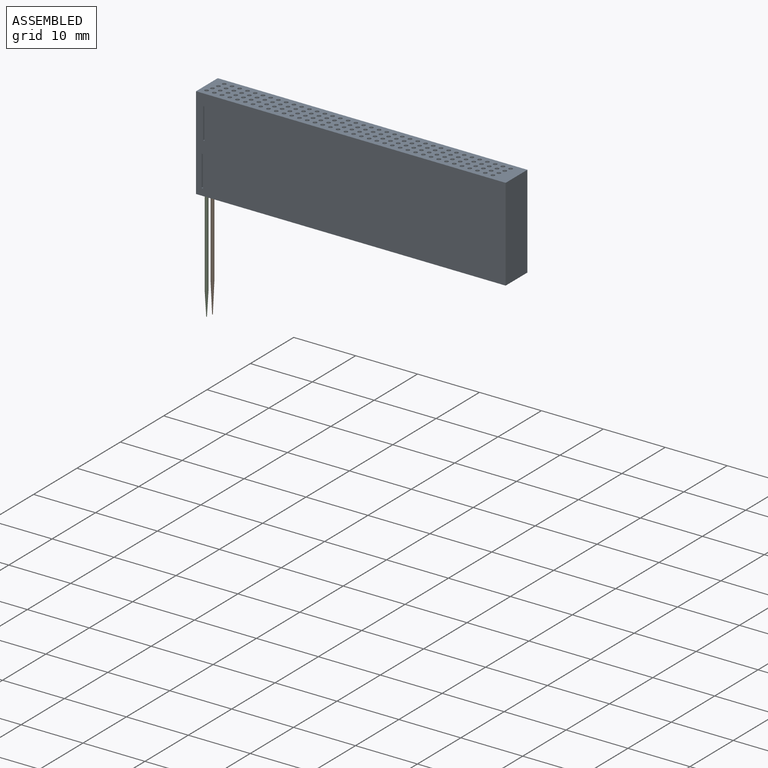
[diagram: assembled view]
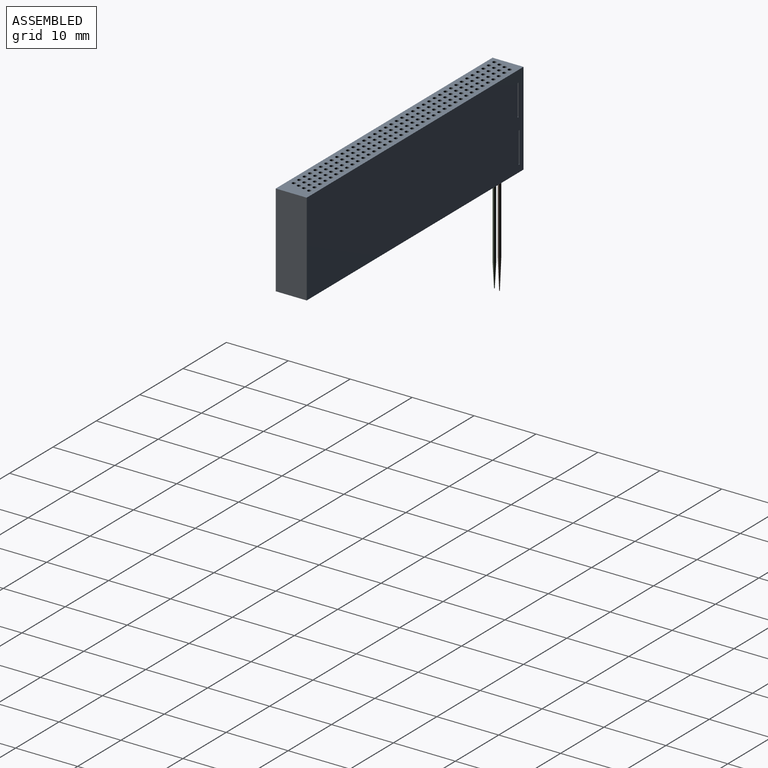
[diagram: assembled view, second angle]
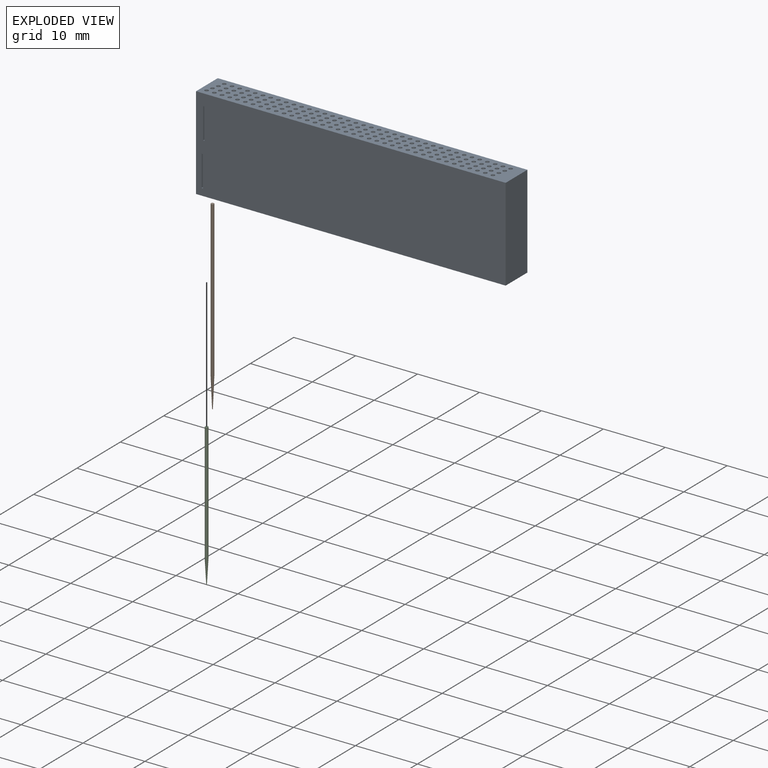
[diagram: exploded view]
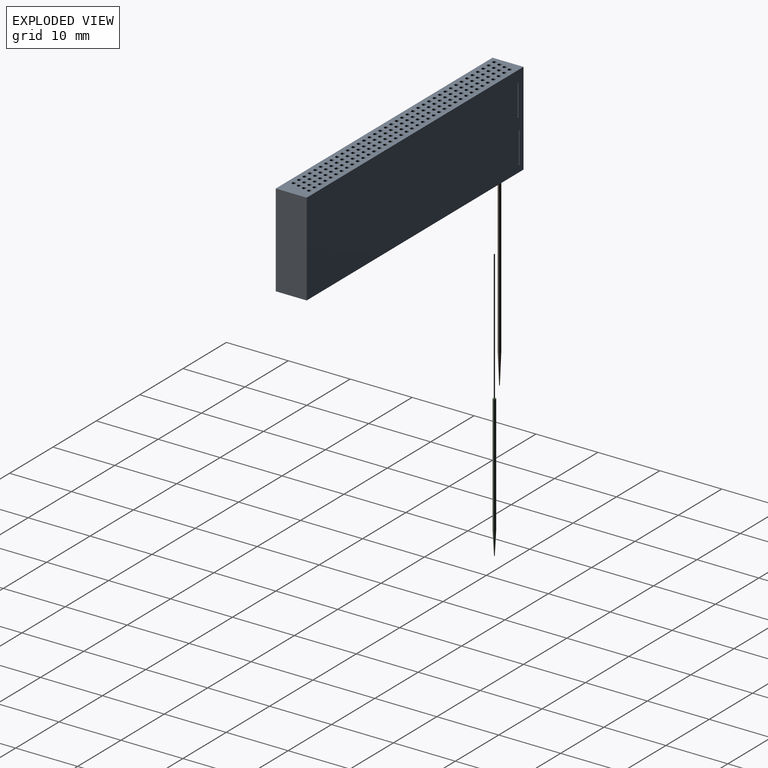
[diagram: exploded view, second angle]
ASSEMBLY  parts=3 mates=2
PART A: 177 faces, bbox 50x5x15 mm
  f0: plane 50x15mm, normal (0,-1,0), area 748mm2, adj f5,f6,f156,f157,f169,f170,f171,f172
  f1: cylinder r=0.3mm len=15mm, axis (0,0,-1), area 25.1mm2, adj f156,f157,f158,f159,f161,f162
  f2: cylinder r=0.3mm len=15mm, axis (0,0,-1), area 23.1mm2, adj f156,f157,f159,f160,f161,f162,f163,f164
  f3: cylinder r=0.3mm len=15mm, axis (0,0,-1), area 23.1mm2, adj f156,f157,f164,f165,f166,f167,f168,f169
  f4: plane 50x15mm, normal (0,1,0), area 748mm2, adj f5,f6,f156,f157,f158,f159,f160,f161
  f5: plane 15x5mm, normal (-1,0,0), area 75mm2, adj f0,f4,f156,f157
  f6: plane 15x5mm, normal (1,0,0), area 75mm2, adj f0,f4,f156,f157
  f7: cylinder r=0.3mm len=15mm, axis (0,0,-1), area 28.3mm2, adj f156,f157
  f8: cylinder r=0.3mm len=15mm, axis (0,0,-1), area 28.3mm2, adj f156,f157
  f9: cylinder r=0.3mm len=15mm, axis (0,0,-1), area 28.3mm2, adj f156,f157
  f10: cylinder r=0.3mm len=15mm, axis (0,0,-1), area 28.3mm2, adj f156,f157
  f11: cylinder r=0.3mm len=15mm, axis (0,0,-1), area 28.3mm2, adj f156,f157
  f12: cylinder r=0.3mm len=15mm, axis (0,0,-1), area 28.3mm2, adj f156,f157
  f13: cylinder r=0.3mm len=15mm, axis (0,0,-1), area 28.3mm2, adj f156,f157
  f14: cylinder r=0.3mm len=15mm, axis (0,0,-1), area 28.3mm2, adj f156,f157
  f15: cylinder r=0.3mm len=15mm, axis (0,0,-1), area 28.3mm2, adj f156,f157
  f16: cylinder r=0.3mm len=15mm, axis (0,0,-1), area 28.3mm2, adj f156,f157
  f17: cylinder r=0.3mm len=15mm, axis (0,0,-1), area 28.3mm2, adj f156,f157
  f18: cylinder r=0.3mm len=15mm, axis (0,0,-1), area 28.3mm2, adj f156,f157
  f19: cylinder r=0.3mm len=15mm, axis (0,0,-1), area 28.3mm2, adj f156,f157
  f20: cylinder r=0.3mm len=15mm, axis (0,0,-1), area 28.3mm2, adj f156,f157
  f21: cylinder r=0.3mm len=15mm, axis (0,0,-1), area 28.3mm2, adj f156,f157
  f22: cylinder r=0.3mm len=15mm, axis (0,0,-1), area 28.3mm2, adj f156,f157
  f23: cylinder r=0.3mm len=15mm, axis (0,0,-1), area 28.3mm2, adj f156,f157
  f24: cylinder r=0.3mm len=15mm, axis (0,0,-1), area 28.3mm2, adj f156,f157
  f25: cylinder r=0.3mm len=15mm, axis (0,0,-1), area 28.3mm2, adj f156,f157
  f26: cylinder r=0.3mm len=15mm, axis (0,0,-1), area 28.3mm2, adj f156,f157
  f27: cylinder r=0.3mm len=15mm, axis (0,0,-1), area 28.3mm2, adj f156,f157
  f28: cylinder r=0.3mm len=15mm, axis (0,0,-1), area 28.3mm2, adj f156,f157
  f29: cylinder r=0.3mm len=15mm, axis (0,0,-1), area 28.3mm2, adj f156,f157
  f30: cylinder r=0.3mm len=15mm, axis (0,0,-1), area 28.3mm2, adj f156,f157
  f31: cylinder r=0.3mm len=15mm, axis (0,0,-1), area 28.3mm2, adj f156,f157
  f32: cylinder r=0.3mm len=15mm, axis (0,0,-1), area 28.3mm2, adj f156,f157
  f33: cylinder r=0.3mm len=15mm, axis (0,0,-1), area 28.3mm2, adj f156,f157
  f34: cylinder r=0.3mm len=15mm, axis (0,0,-1), area 28.3mm2, adj f156,f157
  f35: cylinder r=0.3mm len=15mm, axis (0,0,-1), area 28.3mm2, adj f156,f157
  f36: cylinder r=0.3mm len=15mm, axis (0,0,-1), area 28.3mm2, adj f156,f157
  f37: cylinder r=0.3mm len=15mm, axis (0,0,-1), area 28.3mm2, adj f156,f157
  f38: cylinder r=0.3mm len=15mm, axis (0,0,-1), area 28.3mm2, adj f156,f157
  f39: cylinder r=0.3mm len=15mm, axis (0,0,-1), area 28.3mm2, adj f156,f157
  f40: cylinder r=0.3mm len=15mm, axis (0,0,-1), area 28.3mm2, adj f156,f157
  f41: cylinder r=0.3mm len=15mm, axis (0,0,-1), area 28.3mm2, adj f156,f157
  f42: cylinder r=0.3mm len=15mm, axis (0,0,-1), area 28.3mm2, adj f156,f157
  f43: cylinder r=0.3mm len=15mm, axis (0,0,-1), area 28.3mm2, adj f156,f157
  f44: cylinder r=0.3mm len=15mm, axis (0,0,-1), area 28.3mm2, adj f156,f157
  f45: cylinder r=0.3mm len=15mm, axis (0,0,-1), area 28.3mm2, adj f156,f157
  f46: cylinder r=0.3mm len=15mm, axis (0,0,-1), area 28.3mm2, adj f156,f157
  f47: cylinder r=0.3mm len=15mm, axis (0,0,-1), area 28.3mm2, adj f156,f157
  f48: cylinder r=0.3mm len=15mm, axis (0,0,-1), area 28.3mm2, adj f156,f157
  f49: cylinder r=0.3mm len=15mm, axis (0,0,-1), area 28.3mm2, adj f156,f157
  f50: cylinder r=0.3mm len=15mm, axis (0,0,-1), area 28.3mm2, adj f156,f157
  f51: cylinder r=0.3mm len=15mm, axis (0,0,-1), area 28.3mm2, adj f156,f157
  f52: cylinder r=0.3mm len=15mm, axis (0,0,-1), area 28.3mm2, adj f156,f157
  f53: cylinder r=0.3mm len=15mm, axis (0,0,-1), area 28.3mm2, adj f156,f157
  f54: cylinder r=0.3mm len=15mm, axis (0,0,-1), area 28.3mm2, adj f156,f157
  f55: cylinder r=0.3mm len=15mm, axis (0,0,-1), area 28.3mm2, adj f156,f157
  f56: cylinder r=0.3mm len=15mm, axis (0,0,-1), area 28.3mm2, adj f156,f157
  f57: cylinder r=0.3mm len=15mm, axis (0,0,-1), area 28.3mm2, adj f156,f157
  f58: cylinder r=0.3mm len=15mm, axis (0,0,-1), area 28.3mm2, adj f156,f157
  f59: cylinder r=0.3mm len=15mm, axis (0,0,-1), area 28.3mm2, adj f156,f157
  f60: cylinder r=0.3mm len=15mm, axis (0,0,-1), area 28.3mm2, adj f156,f157
  f61: cylinder r=0.3mm len=15mm, axis (0,0,-1), area 28.3mm2, adj f156,f157
  f62: cylinder r=0.3mm len=15mm, axis (0,0,-1), area 28.3mm2, adj f156,f157
  f63: cylinder r=0.3mm len=15mm, axis (0,0,-1), area 28.3mm2, adj f156,f157
  f64: cylinder r=0.3mm len=15mm, axis (0,0,-1), area 28.3mm2, adj f156,f157
  f65: cylinder r=0.3mm len=15mm, axis (0,0,-1), area 28.3mm2, adj f156,f157
  f66: cylinder r=0.3mm len=15mm, axis (0,0,-1), area 28.3mm2, adj f156,f157
  f67: cylinder r=0.3mm len=15mm, axis (0,0,-1), area 28.3mm2, adj f156,f157
  f68: cylinder r=0.3mm len=15mm, axis (0,0,-1), area 28.3mm2, adj f156,f157
  f69: cylinder r=0.3mm len=15mm, axis (0,0,-1), area 28.3mm2, adj f156,f157
  f70: cylinder r=0.3mm len=15mm, axis (0,0,-1), area 28.3mm2, adj f156,f157
  f71: cylinder r=0.3mm len=15mm, axis (0,0,-1), area 28.3mm2, adj f156,f157
  f72: cylinder r=0.3mm len=15mm, axis (0,0,-1), area 28.3mm2, adj f156,f157
  f73: cylinder r=0.3mm len=15mm, axis (0,0,-1), area 28.3mm2, adj f156,f157
  f74: cylinder r=0.3mm len=15mm, axis (0,0,-1), area 28.3mm2, adj f156,f157
  f75: cylinder r=0.3mm len=15mm, axis (0,0,-1), area 28.3mm2, adj f156,f157
  f76: cylinder r=0.3mm len=15mm, axis (0,0,-1), area 28.3mm2, adj f156,f157
  f77: cylinder r=0.3mm len=15mm, axis (0,0,-1), area 28.3mm2, adj f156,f157
  f78: cylinder r=0.3mm len=15mm, axis (0,0,-1), area 28.3mm2, adj f156,f157
  f79: cylinder r=0.3mm len=15mm, axis (0,0,-1), area 28.3mm2, adj f156,f157
  f80: cylinder r=0.3mm len=15mm, axis (0,0,-1), area 28.3mm2, adj f156,f157
  f81: cylinder r=0.3mm len=15mm, axis (0,0,-1), area 28.3mm2, adj f156,f157
  f82: cylinder r=0.3mm len=15mm, axis (0,0,-1), area 28.3mm2, adj f156,f157
  f83: cylinder r=0.3mm len=15mm, axis (0,0,-1), area 28.3mm2, adj f156,f157
  f84: cylinder r=0.3mm len=15mm, axis (0,0,-1), area 28.3mm2, adj f156,f157
  f85: cylinder r=0.3mm len=15mm, axis (0,0,-1), area 28.3mm2, adj f156,f157
  f86: cylinder r=0.3mm len=15mm, axis (0,0,-1), area 28.3mm2, adj f156,f157
  f87: cylinder r=0.3mm len=15mm, axis (0,0,-1), area 28.3mm2, adj f156,f157
  f88: cylinder r=0.3mm len=15mm, axis (0,0,-1), area 28.3mm2, adj f156,f157
  f89: cylinder r=0.3mm len=15mm, axis (0,0,-1), area 28.3mm2, adj f156,f157
  f90: cylinder r=0.3mm len=15mm, axis (0,0,-1), area 28.3mm2, adj f156,f157
  f91: cylinder r=0.3mm len=15mm, axis (0,0,-1), area 28.3mm2, adj f156,f157
  f92: cylinder r=0.3mm len=15mm, axis (0,0,-1), area 28.3mm2, adj f156,f157
  f93: cylinder r=0.3mm len=15mm, axis (0,0,-1), area 28.3mm2, adj f156,f157
  f94: cylinder r=0.3mm len=15mm, axis (0,0,-1), area 28.3mm2, adj f156,f157
  f95: cylinder r=0.3mm len=15mm, axis (0,0,-1), area 28.3mm2, adj f156,f157
  f96: cylinder r=0.3mm len=15mm, axis (0,0,-1), area 28.3mm2, adj f156,f157
  f97: cylinder r=0.3mm len=15mm, axis (0,0,-1), area 28.3mm2, adj f156,f157
  f98: cylinder r=0.3mm len=15mm, axis (0,0,-1), area 28.3mm2, adj f156,f157
  f99: cylinder r=0.3mm len=15mm, axis (0,0,-1), area 28.3mm2, adj f156,f157
  f100: cylinder r=0.3mm len=15mm, axis (0,0,-1), area 28.3mm2, adj f156,f157
  f101: cylinder r=0.3mm len=15mm, axis (0,0,-1), area 28.3mm2, adj f156,f157
  f102: cylinder r=0.3mm len=15mm, axis (0,0,-1), area 28.3mm2, adj f156,f157
  f103: cylinder r=0.3mm len=15mm, axis (0,0,-1), area 28.3mm2, adj f156,f157
  f104: cylinder r=0.3mm len=15mm, axis (0,0,-1), area 28.3mm2, adj f156,f157
  f105: cylinder r=0.3mm len=15mm, axis (0,0,-1), area 28.3mm2, adj f156,f157
  f106: cylinder r=0.3mm len=15mm, axis (0,0,-1), area 28.3mm2, adj f156,f157
  f107: cylinder r=0.3mm len=15mm, axis (0,0,-1), area 28.3mm2, adj f156,f157
  f108: cylinder r=0.3mm len=15mm, axis (0,0,-1), area 28.3mm2, adj f156,f157
  f109: cylinder r=0.3mm len=15mm, axis (0,0,-1), area 28.3mm2, adj f156,f157
  f110: cylinder r=0.3mm len=15mm, axis (0,0,-1), area 28.3mm2, adj f156,f157
  f111: cylinder r=0.3mm len=15mm, axis (0,0,-1), area 28.3mm2, adj f156,f157
  f112: cylinder r=0.3mm len=15mm, axis (0,0,-1), area 28.3mm2, adj f156,f157
  f113: cylinder r=0.3mm len=15mm, axis (0,0,-1), area 28.3mm2, adj f156,f157
  f114: cylinder r=0.3mm len=15mm, axis (0,0,-1), area 28.3mm2, adj f156,f157
  f115: cylinder r=0.3mm len=15mm, axis (0,0,-1), area 28.3mm2, adj f156,f157
  f116: cylinder r=0.3mm len=15mm, axis (0,0,-1), area 28.3mm2, adj f156,f157
  f117: cylinder r=0.3mm len=15mm, axis (0,0,-1), area 28.3mm2, adj f156,f157
  f118: cylinder r=0.3mm len=15mm, axis (0,0,-1), area 28.3mm2, adj f156,f157
  f119: cylinder r=0.3mm len=15mm, axis (0,0,-1), area 28.3mm2, adj f156,f157
  f120: cylinder r=0.3mm len=15mm, axis (0,0,-1), area 28.3mm2, adj f156,f157
  f121: cylinder r=0.3mm len=15mm, axis (0,0,-1), area 28.3mm2, adj f156,f157
  f122: cylinder r=0.3mm len=15mm, axis (0,0,-1), area 28.3mm2, adj f156,f157
  f123: cylinder r=0.3mm len=15mm, axis (0,0,-1), area 28.3mm2, adj f156,f157
  f124: cylinder r=0.3mm len=15mm, axis (0,0,-1), area 28.3mm2, adj f156,f157
  f125: cylinder r=0.3mm len=15mm, axis (0,0,-1), area 28.3mm2, adj f156,f157
  f126: cylinder r=0.3mm len=15mm, axis (0,0,-1), area 28.3mm2, adj f156,f157
  f127: cylinder r=0.3mm len=15mm, axis (0,0,-1), area 28.3mm2, adj f156,f157
  f128: cylinder r=0.3mm len=15mm, axis (0,0,-1), area 28.3mm2, adj f156,f157
  f129: cylinder r=0.3mm len=15mm, axis (0,0,-1), area 28.3mm2, adj f156,f157
  f130: cylinder r=0.3mm len=15mm, axis (0,0,-1), area 28.3mm2, adj f156,f157
  f131: cylinder r=0.3mm len=15mm, axis (0,0,-1), area 28.3mm2, adj f156,f157
  f132: cylinder r=0.3mm len=15mm, axis (0,0,-1), area 28.3mm2, adj f156,f157
  f133: cylinder r=0.3mm len=15mm, axis (0,0,-1), area 28.3mm2, adj f156,f157
  f134: cylinder r=0.3mm len=15mm, axis (0,0,-1), area 28.3mm2, adj f156,f157
  f135: cylinder r=0.3mm len=15mm, axis (0,0,-1), area 28.3mm2, adj f156,f157
  f136: cylinder r=0.3mm len=15mm, axis (0,0,-1), area 28.3mm2, adj f156,f157
  f137: cylinder r=0.3mm len=15mm, axis (0,0,-1), area 28.3mm2, adj f156,f157
  f138: cylinder r=0.3mm len=15mm, axis (0,0,-1), area 28.3mm2, adj f156,f157
  f139: cylinder r=0.3mm len=15mm, axis (0,0,-1), area 28.3mm2, adj f156,f157
  f140: cylinder r=0.3mm len=15mm, axis (0,0,-1), area 28.3mm2, adj f156,f157
  f141: cylinder r=0.3mm len=15mm, axis (0,0,-1), area 28.3mm2, adj f156,f157
  f142: cylinder r=0.3mm len=15mm, axis (0,0,-1), area 28.3mm2, adj f156,f157
  f143: cylinder r=0.3mm len=15mm, axis (0,0,-1), area 28.3mm2, adj f156,f157
  f144: cylinder r=0.3mm len=15mm, axis (0,0,-1), area 28.3mm2, adj f156,f157
  f145: cylinder r=0.3mm len=15mm, axis (0,0,-1), area 28.3mm2, adj f156,f157
  f146: cylinder r=0.3mm len=15mm, axis (0,0,-1), area 28.3mm2, adj f156,f157
  f147: cylinder r=0.3mm len=15mm, axis (0,0,-1), area 28.3mm2, adj f156,f157
  f148: cylinder r=0.3mm len=15mm, axis (0,0,-1), area 28.3mm2, adj f156,f157
  f149: cylinder r=0.3mm len=15mm, axis (0,0,-1), area 28.3mm2, adj f156,f157
  f150: cylinder r=0.3mm len=15mm, axis (0,0,-1), area 28.3mm2, adj f156,f157
  f151: cylinder r=0.3mm len=15mm, axis (0,0,-1), area 28.3mm2, adj f156,f157
  f152: cylinder r=0.3mm len=15mm, axis (0,0,-1), area 28.3mm2, adj f156,f157
  f153: cylinder r=0.3mm len=15mm, axis (0,0,-1), area 28.3mm2, adj f156,f157
  f154: cylinder r=0.3mm len=15mm, axis (0,0,-1), area 28.3mm2, adj f156,f157
  f155: cylinder r=0.3mm len=15mm, axis (0,0,-1), area 28.3mm2, adj f156,f157
  f156: plane 50x5mm, normal (0,0,1), area 207mm2, adj f0,f1,f2,f3,f4,f5,f6,f7
  f157: plane 50x5mm, normal (0,0,-1), area 207mm2, adj f0,f1,f2,f3,f4,f5,f6,f7
  f158: plane 5x1.74mm, normal (-1,0,0), area 8.7mm2, adj f1,f4,f159,f161
  f159: plane 2.72x0.2mm, normal (0,0,1), area 0.5mm2, adj f1,f2,f4,f158,f160,f162
  f160: plane 5x2.72mm, normal (1,0,0), area 13.6mm2, adj f2,f4,f159,f161
  f161: plane 2.72x0.2mm, normal (0,0,-1), area 0.5mm2, adj f1,f2,f4,f158,f160,f162
  f162: plane 5x0.46mm, normal (-1,0,0), area 2.3mm2, adj f1,f2,f159,f161
  f163: plane 5x2.74mm, normal (-1,0,0), area 13.7mm2, adj f2,f4,f164,f166
  f164: plane 3.72x0.2mm, normal (0,0,1), area 0.7mm2, adj f2,f3,f4,f163,f165,f167
  f165: plane 5x3.72mm, normal (1,0,0), area 18.6mm2, adj f3,f4,f164,f166
  f166: plane 3.72x0.2mm, normal (0,0,-1), area 0.7mm2, adj f2,f3,f4,f163,f165,f167
  f167: plane 5x0.46mm, normal (-1,0,0), area 2.3mm2, adj f2,f3,f164,f166
  f168: plane 5x0.46mm, normal (1,0,0), area 2.3mm2, adj f2,f3,f169,f171
  f169: plane 1.72x0.2mm, normal (0,0,-1), area 0.3mm2, adj f0,f2,f3,f168,f170,f172
  f170: plane 5x0.74mm, normal (1,0,0), area 3.7mm2, adj f0,f3,f169,f171
  f171: plane 1.72x0.2mm, normal (0,0,1), area 0.3mm2, adj f0,f2,f3,f168,f170,f172
  f172: plane 5x1.72mm, normal (-1,0,0), area 8.6mm2, adj f0,f2,f169,f171
  f173: plane 0.72x0.2mm, normal (0,0,-1), area 0.1mm2, adj f0,f3,f174,f176
  f174: plane 5x0.72mm, normal (1,0,0), area 3.6mm2, adj f0,f3,f173,f175
  f175: plane 0.72x0.2mm, normal (0,0,1), area 0.1mm2, adj f0,f3,f174,f176
  f176: plane 5x0.72mm, normal (-1,0,0), area 3.6mm2, adj f0,f3,f173,f175
PART B: 4 faces, bbox 0.5x0.5x30 mm
  f0: cylinder r=0.25mm len=25mm, axis (0,0,-1), area 39.3mm2, adj f1,f3
  f1: plane 0.5x0.5mm, normal (0,0,1), area 0.2mm2, adj f0
  f2: plane 0.1x0.1mm, normal (0,0,-1), area 0mm2, adj f3
  f3: cone r=0.25mm half-angle=2.3deg, axis (0,0,1), area 4.7mm2, adj f0,f2
PART C: 4 faces, bbox 0.5x0.5x23 mm
  f0: cylinder r=0.25mm len=19.17mm, axis (0,0,-1), area 30.1mm2, adj f1,f3
  f1: plane 0.5x0.5mm, normal (0,0,1), area 0.2mm2, adj f0
  f2: plane 0.1x0.1mm, normal (0,0,-1), area 0mm2, adj f3
  f3: cone r=0.25mm half-angle=3deg, axis (0,0,1), area 3.6mm2, adj f0,f2
PLACE A t=(0,0,12)mm
PLACE B t=(-23.75,-0.5,-1)mm
PLACE C t=(-24,-10.3,-8)mm
MATE slider C.f0 <-> A.f3  axis (0,0,1) through (-24,-1.5,17)mm
MATE slider B.f0 <-> A.f2  axis (0,0,1) through (-23.75,-0.5,24)mm
